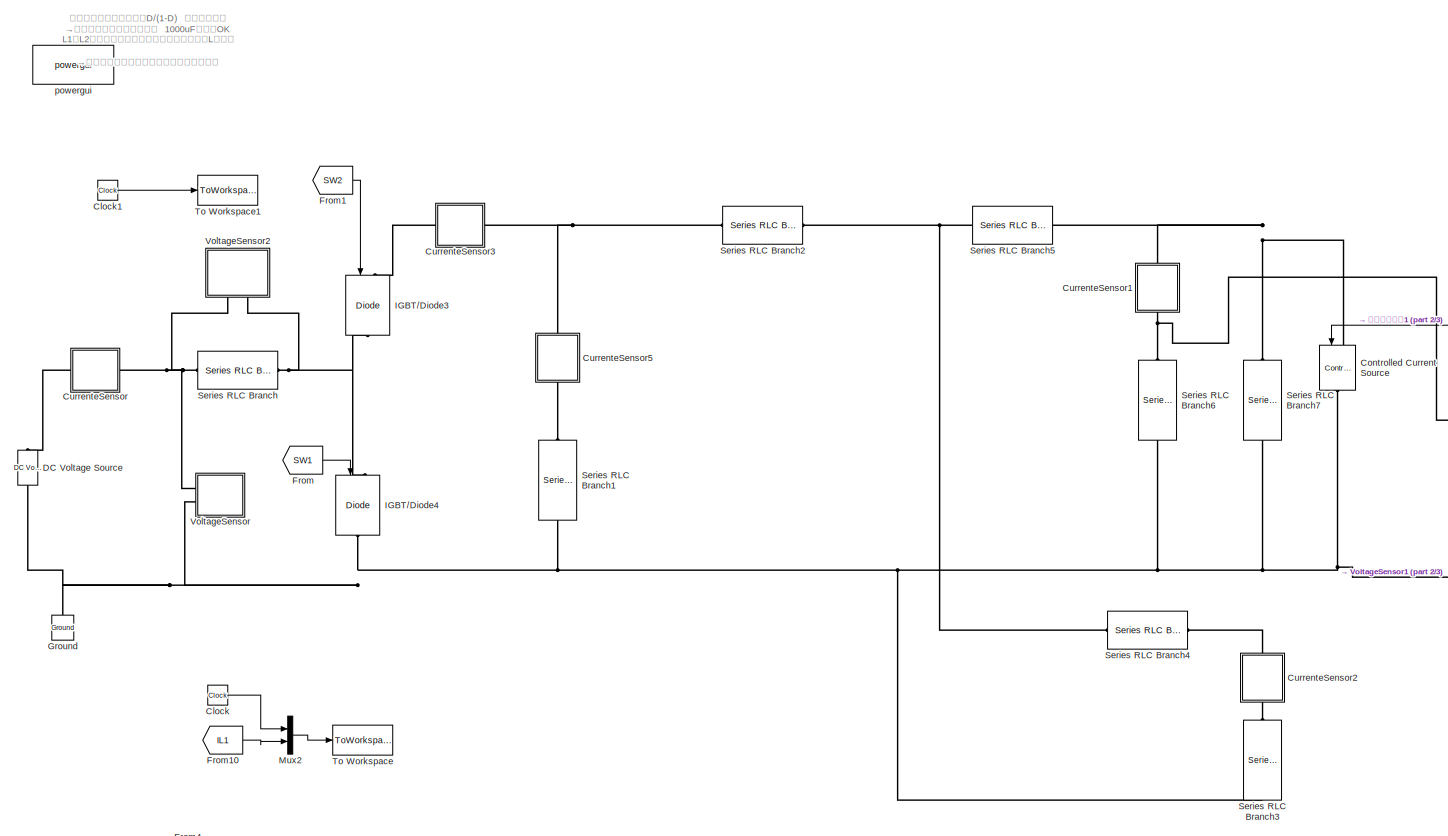
[diagram: root canvas - part 1/3, most of the canvas]
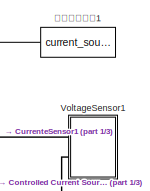
[diagram: root canvas - part 2/3, middle right region]
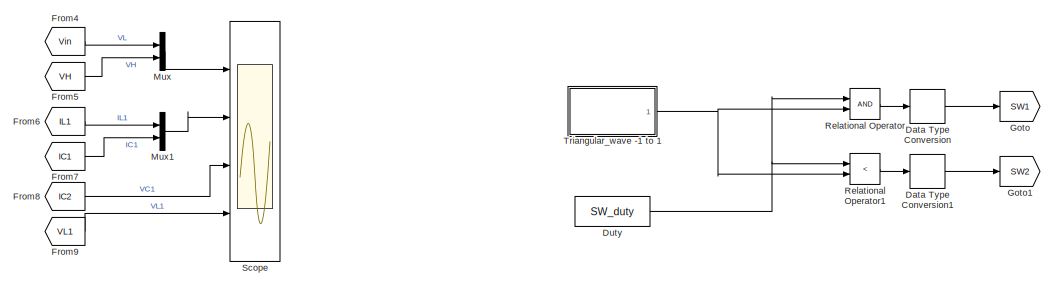
[diagram: root canvas - part 3/3, bottom center region]
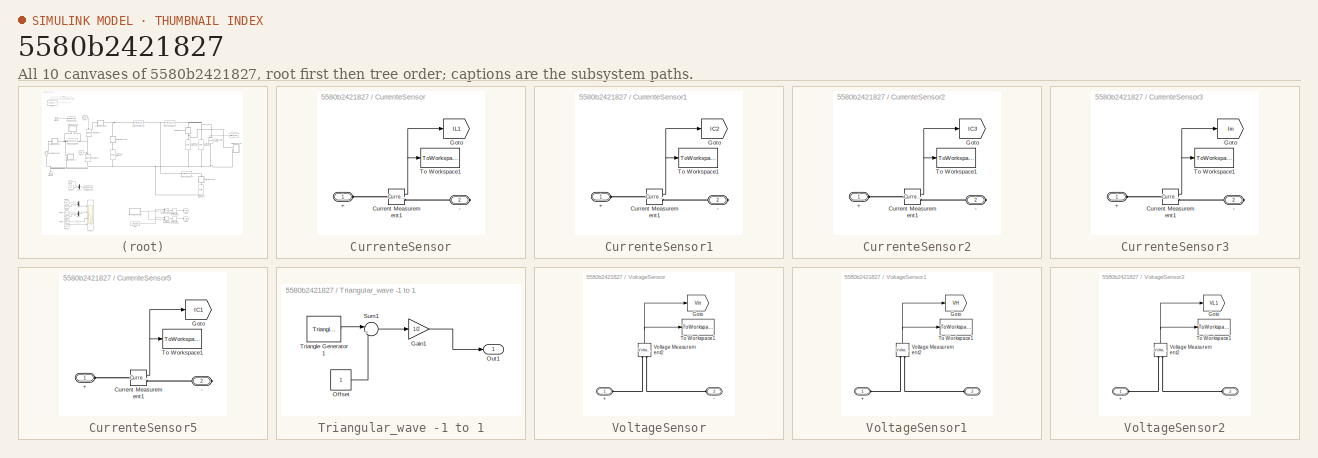
[diagram: thumbnail index - all 10 canvases of the model, root first then tree order]
MODEL slx_5580b2421827
KIND model
CONFIG AbsTol = 1e-3
CONFIG EnableMultiTasking = on
CONFIG FixedStep = auto
CONFIG MaxStep = auto
CONFIG MinStep = auto
CONFIG RelTol = 1e-3
CONFIG SampleTimeConstraint = Unconstrained
CONFIG Solver = VariableStepAuto
CONFIG SolverName = VariableStepAuto
CONFIG StartTime = 0.0
CONFIG StopTime = 0.6
BLOCK [Clock] Clock
  Commented = on
BLOCK [Clock] Clock1
BLOCK [Reference] Controlled Current Source  REF=powerlib/Electrical
Sources/Controlled Current Source
  Ports = [1, 0, 0, 0, 0, 1, 1]
  SourceBlock = powerlib/Electrical\nSources/Controlled Current Source
  SourceProductBaseCode = PS
  SourceProductName = Simscape Power Systems
  SourceType = Controlled Current Source
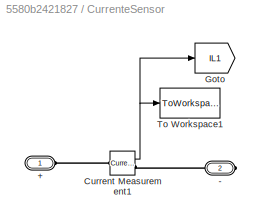
BLOCK [SubSystem] CurrenteSensor
  AttributesFormatString = %<VariableName>
  Ports = [0, 0, 0, 0, 0, 1, 1]
  RequestExecContextInheritance = off
BLOCK [PMIOPort] CurrenteSensor/+
  Side = Left
BLOCK [PMIOPort] CurrenteSensor/-
  Port = 2
  Side = Right
BLOCK [Reference] CurrenteSensor/Current Measurement1  REF=powerlib/Measurements/Current Measurement
  Ports = [0, 1, 0, 0, 0, 1, 1]
  SourceBlock = powerlib/Measurements/Current Measurement
  SourceProductBaseCode = PS
  SourceProductName = Simscape Power Systems
  SourceType = Current Measurement
  UserDataPersistent = on
BLOCK [Goto] CurrenteSensor/Goto
  GotoTag = IL1
  TagVisibility = global
BLOCK [ToWorkspace] CurrenteSensor/To Workspace1
  FixptAsFi = on
  MaxDataPoints = inf
  Ports = [1]
  SampleTime = sample_time
  Save2DSignal = 3-D array (concatenate along third dimension)
  VariableName = IL1
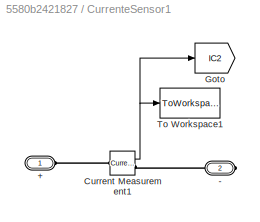
BLOCK [SubSystem] CurrenteSensor1
  AttributesFormatString = %<VariableName>
  Ports = [0, 0, 0, 0, 0, 1, 1]
  RequestExecContextInheritance = off
BLOCK [PMIOPort] CurrenteSensor1/+
  Side = Left
BLOCK [PMIOPort] CurrenteSensor1/-
  Port = 2
  Side = Right
BLOCK [Reference] CurrenteSensor1/Current Measurement1  REF=powerlib/Measurements/Current Measurement
  Ports = [0, 1, 0, 0, 0, 1, 1]
  SourceBlock = powerlib/Measurements/Current Measurement
  SourceProductBaseCode = PS
  SourceProductName = Simscape Power Systems
  SourceType = Current Measurement
  UserDataPersistent = on
BLOCK [Goto] CurrenteSensor1/Goto
  GotoTag = IC2
  TagVisibility = global
BLOCK [ToWorkspace] CurrenteSensor1/To Workspace1
  FixptAsFi = on
  MaxDataPoints = inf
  Ports = [1]
  SampleTime = sample_time
  Save2DSignal = 3-D array (concatenate along third dimension)
  VariableName = IC2
BLOCK [SubSystem] CurrenteSensor2
  AttributesFormatString = %<VariableName>
  Ports = [0, 0, 0, 0, 0, 1, 1]
  RequestExecContextInheritance = off
BLOCK [PMIOPort] CurrenteSensor2/+
  Side = Left
BLOCK [PMIOPort] CurrenteSensor2/-
  Port = 2
  Side = Right
BLOCK [Reference] CurrenteSensor2/Current Measurement1  REF=powerlib/Measurements/Current Measurement
  Ports = [0, 1, 0, 0, 0, 1, 1]
  SourceBlock = powerlib/Measurements/Current Measurement
  SourceProductBaseCode = PS
  SourceProductName = Simscape Power Systems
  SourceType = Current Measurement
  UserDataPersistent = on
BLOCK [Goto] CurrenteSensor2/Goto
  GotoTag = IC3
  TagVisibility = global
BLOCK [ToWorkspace] CurrenteSensor2/To Workspace1
  FixptAsFi = on
  MaxDataPoints = inf
  Ports = [1]
  SampleTime = sample_time
  Save2DSignal = 3-D array (concatenate along third dimension)
  VariableName = IC3
BLOCK [SubSystem] CurrenteSensor3
  AttributesFormatString = %<VariableName>
  Ports = [0, 0, 0, 0, 0, 1, 1]
  RequestExecContextInheritance = off
BLOCK [PMIOPort] CurrenteSensor3/+
  Side = Left
BLOCK [PMIOPort] CurrenteSensor3/-
  Port = 2
  Side = Right
BLOCK [Reference] CurrenteSensor3/Current Measurement1  REF=powerlib/Measurements/Current Measurement
  Ports = [0, 1, 0, 0, 0, 1, 1]
  SourceBlock = powerlib/Measurements/Current Measurement
  SourceProductBaseCode = PS
  SourceProductName = Simscape Power Systems
  SourceType = Current Measurement
  UserDataPersistent = on
BLOCK [Goto] CurrenteSensor3/Goto
  GotoTag = Iin
  TagVisibility = global
BLOCK [ToWorkspace] CurrenteSensor3/To Workspace1
  FixptAsFi = on
  MaxDataPoints = inf
  Ports = [1]
  SampleTime = sample_time
  Save2DSignal = 3-D array (concatenate along third dimension)
  VariableName = Iin
BLOCK [SubSystem] CurrenteSensor5
  AttributesFormatString = %<VariableName>
  Ports = [0, 0, 0, 0, 0, 1, 1]
  RequestExecContextInheritance = off
BLOCK [PMIOPort] CurrenteSensor5/+
  Side = Left
BLOCK [PMIOPort] CurrenteSensor5/-
  Port = 2
  Side = Right
BLOCK [Reference] CurrenteSensor5/Current Measurement1  REF=powerlib/Measurements/Current Measurement
  Ports = [0, 1, 0, 0, 0, 1, 1]
  SourceBlock = powerlib/Measurements/Current Measurement
  SourceProductBaseCode = PS
  SourceProductName = Simscape Power Systems
  SourceType = Current Measurement
  UserDataPersistent = on
BLOCK [Goto] CurrenteSensor5/Goto
  GotoTag = IC1
  TagVisibility = global
BLOCK [ToWorkspace] CurrenteSensor5/To Workspace1
  FixptAsFi = on
  MaxDataPoints = inf
  Ports = [1]
  SampleTime = sample_time
  Save2DSignal = 3-D array (concatenate along third dimension)
  VariableName = IC1
BLOCK [Reference] DC Voltage Source  REF=powerlib/Electrical
Sources/DC Voltage Source
  AttributesFormatString = DC = %<Amplitude> V
  Ports = [0, 0, 0, 0, 0, 1, 1]
  SourceBlock = powerlib/Electrical\nSources/DC Voltage Source
  SourceProductBaseCode = PS
  SourceProductName = Simscape Power Systems
  SourceType = DC Voltage Source
BLOCK [DataTypeConversion] Data Type Conversion
  RndMeth = Floor
  SaturateOnIntegerOverflow = off
BLOCK [DataTypeConversion] Data Type Conversion1
  RndMeth = Floor
  SaturateOnIntegerOverflow = off
BLOCK [Constant] Duty 
  Value = SW_duty
BLOCK [From] From
  GotoTag = SW1
BLOCK [From] From1
  GotoTag = SW2
BLOCK [From] From10
  Commented = on
  GotoTag = IL1
BLOCK [From] From4
  GotoTag = Vin
  TagVisibility = global
BLOCK [From] From5
  GotoTag = VH
  TagVisibility = global
BLOCK [From] From6
  GotoTag = IL1
  TagVisibility = global
BLOCK [From] From7
  GotoTag = IC1
  TagVisibility = global
BLOCK [From] From8
  GotoTag = IC2
  TagVisibility = global
BLOCK [From] From9
  GotoTag = VL1
  TagVisibility = global
BLOCK [Goto] Goto
  GotoTag = SW1
BLOCK [Goto] Goto1
  GotoTag = SW2
BLOCK [Reference] Ground  REF=powerlib/Elements/Ground
  Ports = [0, 0, 0, 0, 0, 1]
  SourceBlock = powerlib/Elements/Ground
  SourceProductBaseCode = PS
  SourceProductName = Simscape Power Systems
  SourceType = Ground
BLOCK [Reference] IGBT//Diode3  REF=powerlib/Power
Electronics/IGBT//Diode
  Ports = [1, 0, 0, 0, 0, 1, 1]
  SourceBlock = powerlib/Power\nElectronics/IGBT//Diode
  SourceProductBaseCode = PS
  SourceProductName = Simscape Power Systems
  SourceType = IGBT/Diode
BLOCK [Reference] IGBT//Diode4  REF=powerlib/Power
Electronics/IGBT//Diode
  Ports = [1, 0, 0, 0, 0, 1, 1]
  SourceBlock = powerlib/Power\nElectronics/IGBT//Diode
  SourceProductBaseCode = PS
  SourceProductName = Simscape Power Systems
  SourceType = IGBT/Diode
BLOCK [Mux] Mux
  DisplayOption = bar
  Inputs = 2
  Ports = [2, 1]
BLOCK [Mux] Mux1
  DisplayOption = bar
  Inputs = 2
  Ports = [2, 1]
BLOCK [Mux] Mux2
  Commented = on
  DisplayOption = bar
  Inputs = 2
  Ports = [2, 1]
BLOCK [RelationalOperator] Relational Operator
  InputSameDT = off
  OutDataTypeStr = boolean
  Ports = [2, 1]
  RndMeth = Simplest
BLOCK [RelationalOperator] Relational Operator1
  InputSameDT = off
  Operator = <
  OutDataTypeStr = boolean
  Ports = [2, 1]
  RndMeth = Simplest
BLOCK [Scope] Scope
  Floating = off
  NumInputPorts = 4
  Ports = [4]
  ScopeSpecificationString = Simulink.scopes.TimeScopeBlockCfg('CurrentConfiguration', extmgr.ConfigurationSet(extmgr.Configuration('Core','General UI',true),extmgr.Configuration('Core','Source UI',true),extmgr.Configuration('Sources','WiredSimulink',true,'DataLoggingMaxPoints','10000'),extmgr.Configuration('Visuals','Time Domain',true,'SerializedDisplays',{struct('MinYLimReal','6.97317','MaxYLimReal','138.99408','YLabelReal'...<+3414ch>
BLOCK [Reference] Series RLC Branch  REF=powerlib/Elements/Series RLC Branch
  AttributesFormatString = L=%<Inductance> H\nR=%<Resistance> Ohm
  Ports = [0, 0, 0, 0, 0, 1, 1]
  SourceBlock = powerlib/Elements/Series RLC Branch
  SourceProductBaseCode = PS
  SourceProductName = Simscape Power Systems
  SourceType = Series RLC Branch
BLOCK [Reference] Series RLC Branch1  REF=powerlib/Elements/Series RLC Branch
  AttributesFormatString = C= %<Capacitance>  F
  Ports = [0, 0, 0, 0, 0, 1, 1]
  SourceBlock = powerlib/Elements/Series RLC Branch
  SourceProductBaseCode = PS
  SourceProductName = Simscape Power Systems
  SourceType = Series RLC Branch
BLOCK [Reference] Series RLC Branch2  REF=powerlib/Elements/Series RLC Branch
  AttributesFormatString = L=%<Inductance> H\nR=%<Resistance> Ohm
  Ports = [0, 0, 0, 0, 0, 1, 1]
  SourceBlock = powerlib/Elements/Series RLC Branch
  SourceProductBaseCode = PS
  SourceProductName = Simscape Power Systems
  SourceType = Series RLC Branch
BLOCK [Reference] Series RLC Branch3  REF=powerlib/Elements/Series RLC Branch
  AttributesFormatString = L=%<Inductance> H\nR=%<Resistance> Ohm
  Ports = [0, 0, 0, 0, 0, 1, 1]
  SourceBlock = powerlib/Elements/Series RLC Branch
  SourceProductBaseCode = PS
  SourceProductName = Simscape Power Systems
  SourceType = Series RLC Branch
BLOCK [Reference] Series RLC Branch4  REF=powerlib/Elements/Series RLC Branch
  AttributesFormatString = L=%<Inductance> H\nR=%<Resistance> Ohm
  Ports = [0, 0, 0, 0, 0, 1, 1]
  SourceBlock = powerlib/Elements/Series RLC Branch
  SourceProductBaseCode = PS
  SourceProductName = Simscape Power Systems
  SourceType = Series RLC Branch
BLOCK [Reference] Series RLC Branch5  REF=powerlib/Elements/Series RLC Branch
  AttributesFormatString = L=%<Inductance> H\nR=%<Resistance> Ohm
  Ports = [0, 0, 0, 0, 0, 1, 1]
  SourceBlock = powerlib/Elements/Series RLC Branch
  SourceProductBaseCode = PS
  SourceProductName = Simscape Power Systems
  SourceType = Series RLC Branch
BLOCK [Reference] Series RLC Branch6  REF=powerlib/Elements/Series RLC Branch
  AttributesFormatString = L=%<Inductance> H\nR=%<Resistance> Ohm
  Ports = [0, 0, 0, 0, 0, 1, 1]
  SourceBlock = powerlib/Elements/Series RLC Branch
  SourceProductBaseCode = PS
  SourceProductName = Simscape Power Systems
  SourceType = Series RLC Branch
BLOCK [Reference] Series RLC Branch7  REF=powerlib/Elements/Series RLC Branch
  AttributesFormatString = R=%<Resistance> Ohm
  Ports = [0, 0, 0, 0, 0, 1, 1]
  SourceBlock = powerlib/Elements/Series RLC Branch
  SourceProductBaseCode = PS
  SourceProductName = Simscape Power Systems
  SourceType = Series RLC Branch
BLOCK [ToWorkspace] To Workspace
  Commented = on
  FixptAsFi = on
  MaxDataPoints = inf
  Ports = [1]
  SampleTime = sample_time
  Save2DSignal = 3-D array (concatenate along third dimension)
  VariableName = Output
BLOCK [ToWorkspace] To Workspace1
  FixptAsFi = on
  MaxDataPoints = inf
  Ports = [1]
  SampleTime = sample_time
  Save2DSignal = 3-D array (concatenate along third dimension)
  VariableName = Time
BLOCK [SubSystem] Triangular_wave -1 to 1
  Ports = [0, 1]
  RequestExecContextInheritance = off
BLOCK [Gain] Triangular_wave -1 to 1/Gain1
  Gain = 1/2
  OutDataTypeStr = Inherit: Inherit via internal rule
  ParamDataTypeStr = Inherit: Inherit via internal rule
  SaturateOnIntegerOverflow = off
BLOCK [Constant] Triangular_wave -1 to 1/Offset 
BLOCK [Outport] Triangular_wave -1 to 1/Out1
  IconDisplay = Port number
BLOCK [Sum] Triangular_wave -1 to 1/Sum1
  IconShape = round
  InputSameDT = off
  Inputs = |++
  OutDataTypeStr = Inherit: Inherit via internal rule
  Ports = [2, 1]
  SaturateOnIntegerOverflow = off
BLOCK [Reference] Triangular_wave -1 to 1/Triangle Generator1  REF=powerlib_meascontrol/Pulse & Signal
Generators/Triangle
Generator
  AttributesFormatString = Freq = %<Freq> Hz
  Ports = [0, 1]
  SourceBlock = powerlib_meascontrol/Pulse & Signal\nGenerators/Triangle\nGenerator
  SourceProductBaseCode = PS
  SourceProductName = Simscape Power Systems
  SourceType = Triangle Generator
BLOCK [SubSystem] VoltageSensor
  AttributesFormatString = %<VariableName>
  Ports = [0, 0, 0, 0, 0, 2]
  RequestExecContextInheritance = off
BLOCK [PMIOPort] VoltageSensor/+
  Side = Left
BLOCK [PMIOPort] VoltageSensor/-
  Port = 2
  Side = Left
BLOCK [Goto] VoltageSensor/Goto
  GotoTag = Vin
  TagVisibility = global
BLOCK [ToWorkspace] VoltageSensor/To Workspace1
  FixptAsFi = on
  MaxDataPoints = inf
  Ports = [1]
  SampleTime = SampleTime
  Save2DSignal = 3-D array (concatenate along third dimension)
  VariableName = Vin
BLOCK [Reference] VoltageSensor/Voltage Measurement2  REF=powerlib/Measurements/Voltage Measurement
  Ports = [0, 1, 0, 0, 0, 2]
  SourceBlock = powerlib/Measurements/Voltage Measurement
  SourceProductBaseCode = PS
  SourceProductName = Simscape Power Systems
  SourceType = Voltage Measurement
  UserDataPersistent = on
BLOCK [SubSystem] VoltageSensor1
  AttributesFormatString = %<VariableName>
  Ports = [0, 0, 0, 0, 0, 2]
  RequestExecContextInheritance = off
BLOCK [PMIOPort] VoltageSensor1/+
  Side = Left
BLOCK [PMIOPort] VoltageSensor1/-
  Port = 2
  Side = Left
BLOCK [Goto] VoltageSensor1/Goto
  GotoTag = VH
  TagVisibility = global
BLOCK [ToWorkspace] VoltageSensor1/To Workspace1
  FixptAsFi = on
  MaxDataPoints = inf
  Ports = [1]
  SampleTime = SampleTime
  Save2DSignal = 3-D array (concatenate along third dimension)
  VariableName = VH
BLOCK [Reference] VoltageSensor1/Voltage Measurement2  REF=powerlib/Measurements/Voltage Measurement
  Ports = [0, 1, 0, 0, 0, 2]
  SourceBlock = powerlib/Measurements/Voltage Measurement
  SourceProductBaseCode = PS
  SourceProductName = Simscape Power Systems
  SourceType = Voltage Measurement
  UserDataPersistent = on
BLOCK [SubSystem] VoltageSensor2
  AttributesFormatString = %<VariableName>
  Ports = [0, 0, 0, 0, 0, 2]
  RequestExecContextInheritance = off
BLOCK [PMIOPort] VoltageSensor2/+
  Side = Left
BLOCK [PMIOPort] VoltageSensor2/-
  Port = 2
  Side = Left
BLOCK [Goto] VoltageSensor2/Goto
  GotoTag = VL1
  TagVisibility = global
BLOCK [ToWorkspace] VoltageSensor2/To Workspace1
  FixptAsFi = on
  MaxDataPoints = inf
  Ports = [1]
  SampleTime = SampleTime
  Save2DSignal = 3-D array (concatenate along third dimension)
  VariableName = VL1
BLOCK [Reference] VoltageSensor2/Voltage Measurement2  REF=powerlib/Measurements/Voltage Measurement
  Ports = [0, 1, 0, 0, 0, 2]
  SourceBlock = powerlib/Measurements/Voltage Measurement
  SourceProductBaseCode = PS
  SourceProductName = Simscape Power Systems
  SourceType = Voltage Measurement
  UserDataPersistent = on
BLOCK [Reference] powergui  REF=powerlib/powergui
  Ports = []
  Priority = 1
  SourceBlock = powerlib/powergui
  SourceProductBaseCode = PS
  SourceProductName = Simscape Power Systems
  SourceType = PSB option menu block
BLOCK [Constant] 電流源の司令1
  Value = current_source
ANNOTATION (root): やはり結合させないと、D/(1-D) にならない？ →フィルタコンが小さすぎた 1000uFにしてOK L1もL2も同じくらい触れるので、同サイズのLが必要 →体格はチョッパ型の２倍いりそうですね。 Duty 0.8 とか 0.2 で自己発振
LINE Clock1:1 -> To Workspace1:1
LINE Clock:1 -> Mux2:1
NET CurrenteSensor/Current Measurement1:1 -> CurrenteSensor/Goto:1, CurrenteSensor/To Workspace1:1
NET CurrenteSensor1/Current Measurement1:1 -> CurrenteSensor1/Goto:1, CurrenteSensor1/To Workspace1:1
NET CurrenteSensor2/Current Measurement1:1 -> CurrenteSensor2/Goto:1, CurrenteSensor2/To Workspace1:1
NET CurrenteSensor3/Current Measurement1:1 -> CurrenteSensor3/Goto:1, CurrenteSensor3/To Workspace1:1
NET CurrenteSensor5/Current Measurement1:1 -> CurrenteSensor5/Goto:1, CurrenteSensor5/To Workspace1:1
LINE Data Type Conversion1:1 -> Goto1:1
LINE Data Type Conversion:1 -> Goto:1
NET Duty :1 -> Relational Operator1:1, Relational Operator:1
LINE From10:1 -> Mux2:2
LINE From1:1 -> IGBT//Diode3:1
LINE From4:1 -> Mux:1
LINE From5:1 -> Mux:2
LINE From6:1 -> Mux1:1
LINE From7:1 -> Mux1:2
LINE From8:1 -> Scope:3
LINE From9:1 -> Scope:4
LINE From:1 -> IGBT//Diode4:1
LINE Mux1:1 -> Scope:2
LINE Mux2:1 -> To Workspace:1
LINE Mux:1 -> Scope:1
LINE Relational Operator1:1 -> Data Type Conversion1:1
LINE Relational Operator:1 -> Data Type Conversion:1
LINE Triangular_wave -1 to 1/Gain1:1 -> Triangular_wave -1 to 1/Out1:1
LINE Triangular_wave -1 to 1/Offset :1 -> Triangular_wave -1 to 1/Sum1:2
LINE Triangular_wave -1 to 1/Sum1:1 -> Triangular_wave -1 to 1/Gain1:1
LINE Triangular_wave -1 to 1/Triangle Generator1:1 -> Triangular_wave -1 to 1/Sum1:1
NET Triangular_wave -1 to 1:1 -> Relational Operator1:2, Relational Operator:2
NET VoltageSensor/Voltage Measurement2:1 -> VoltageSensor/Goto:1, VoltageSensor/To Workspace1:1
NET VoltageSensor1/Voltage Measurement2:1 -> VoltageSensor1/Goto:1, VoltageSensor1/To Workspace1:1
NET VoltageSensor2/Voltage Measurement2:1 -> VoltageSensor2/Goto:1, VoltageSensor2/To Workspace1:1
LINE 電流源の司令1:1 -> Controlled Current Source:1
PNET net1: Controlled Current Source:LConn1 -- CurrenteSensor1:LConn1 -- Series RLC Branch5:RConn1 -- Series RLC Branch7:LConn1
PNET net2: Controlled Current Source:RConn1 -- DC Voltage Source:LConn1 -- Ground:LConn1 -- IGBT//Diode4:RConn1 -- Series RLC Branch1:RConn1 -- Series RLC Branch3:RConn1 -- Series RLC Branch6:RConn1 -- Series RLC Branch7:RConn1 -- VoltageSensor1:LConn2 -- VoltageSensor:LConn2
PLINE CurrenteSensor/+:RConn1 -- CurrenteSensor/Current Measurement1:LConn1
PLINE CurrenteSensor/-:RConn1 -- CurrenteSensor/Current Measurement1:RConn1
PLINE CurrenteSensor1/+:RConn1 -- CurrenteSensor1/Current Measurement1:LConn1
PLINE CurrenteSensor1/-:RConn1 -- CurrenteSensor1/Current Measurement1:RConn1
PNET net3: CurrenteSensor1:RConn1 -- Series RLC Branch6:LConn1 -- VoltageSensor1:LConn1
PLINE CurrenteSensor2/+:RConn1 -- CurrenteSensor2/Current Measurement1:LConn1
PLINE CurrenteSensor2/-:RConn1 -- CurrenteSensor2/Current Measurement1:RConn1
PLINE CurrenteSensor2:LConn1 -- Series RLC Branch4:RConn1
PLINE CurrenteSensor2:RConn1 -- Series RLC Branch3:LConn1
PLINE CurrenteSensor3/+:RConn1 -- CurrenteSensor3/Current Measurement1:LConn1
PLINE CurrenteSensor3/-:RConn1 -- CurrenteSensor3/Current Measurement1:RConn1
PLINE CurrenteSensor3:LConn1 -- IGBT//Diode3:LConn1
PNET net4: CurrenteSensor3:RConn1 -- CurrenteSensor5:LConn1 -- Series RLC Branch2:LConn1
PLINE CurrenteSensor5/+:RConn1 -- CurrenteSensor5/Current Measurement1:LConn1
PLINE CurrenteSensor5/-:RConn1 -- CurrenteSensor5/Current Measurement1:RConn1
PLINE CurrenteSensor5:RConn1 -- Series RLC Branch1:LConn1
PLINE CurrenteSensor:LConn1 -- DC Voltage Source:RConn1
PNET net5: CurrenteSensor:RConn1 -- Series RLC Branch:LConn1 -- VoltageSensor2:LConn1 -- VoltageSensor:LConn1
PNET net6: IGBT//Diode3:RConn1 -- IGBT//Diode4:LConn1 -- Series RLC Branch:RConn1 -- VoltageSensor2:LConn2
PNET net7: Series RLC Branch2:RConn1 -- Series RLC Branch4:LConn1 -- Series RLC Branch5:LConn1
PLINE VoltageSensor/+:RConn1 -- VoltageSensor/Voltage Measurement2:LConn1
PLINE VoltageSensor/-:RConn1 -- VoltageSensor/Voltage Measurement2:LConn2
PLINE VoltageSensor1/+:RConn1 -- VoltageSensor1/Voltage Measurement2:LConn1
PLINE VoltageSensor1/-:RConn1 -- VoltageSensor1/Voltage Measurement2:LConn2
PLINE VoltageSensor2/+:RConn1 -- VoltageSensor2/Voltage Measurement2:LConn1
PLINE VoltageSensor2/-:RConn1 -- VoltageSensor2/Voltage Measurement2:LConn2
note: NET lines group one-source signal fan-out (src -> all destinations, sorted); 1:1 wires keep LINE; PNET lines group multi-terminal physical nets as a canonical sorted terminal list (undirected conserving connections); 2-terminal nets keep the pairwise PLINE form
